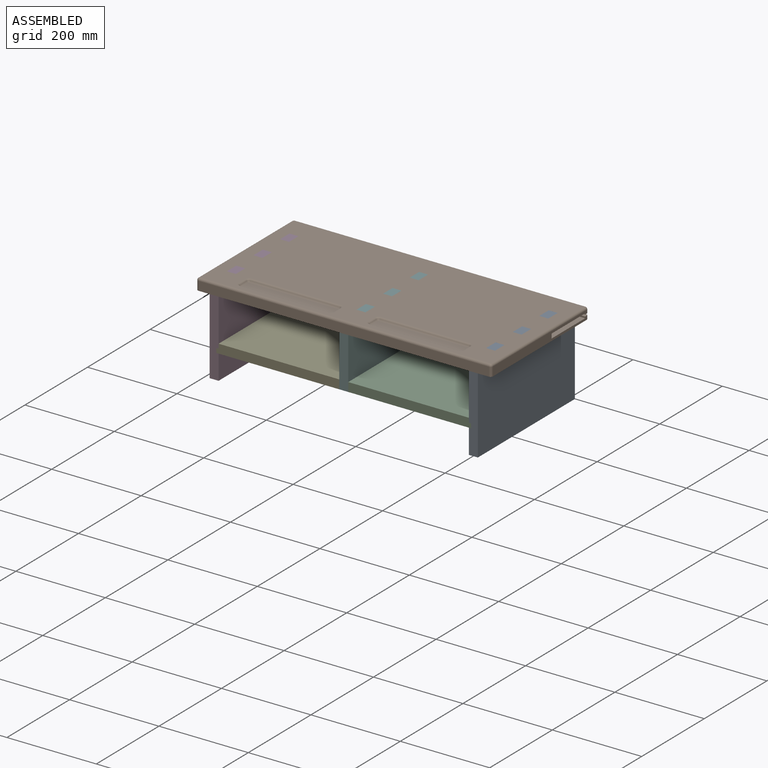
[diagram: assembled view]
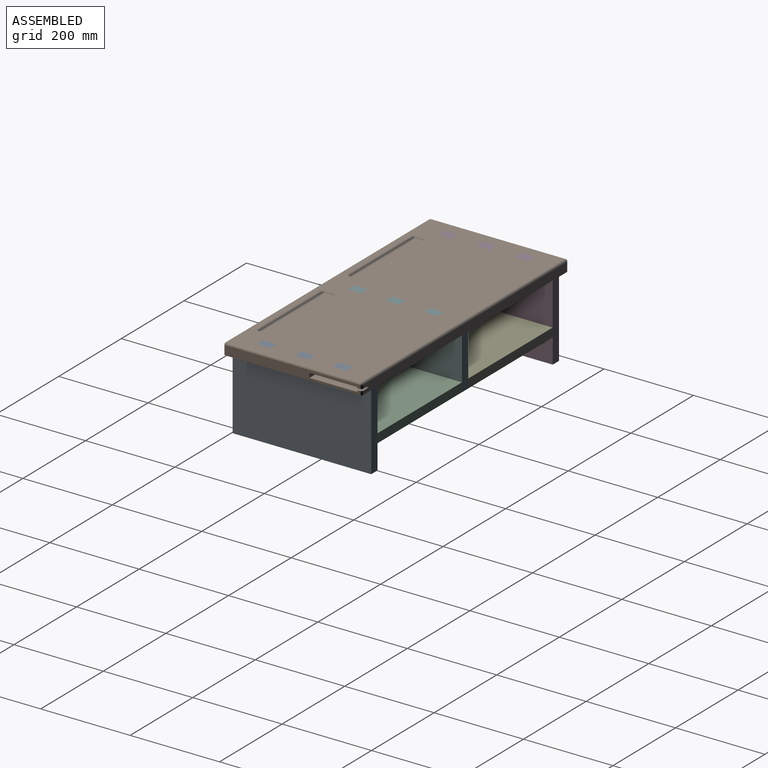
[diagram: assembled view, second angle]
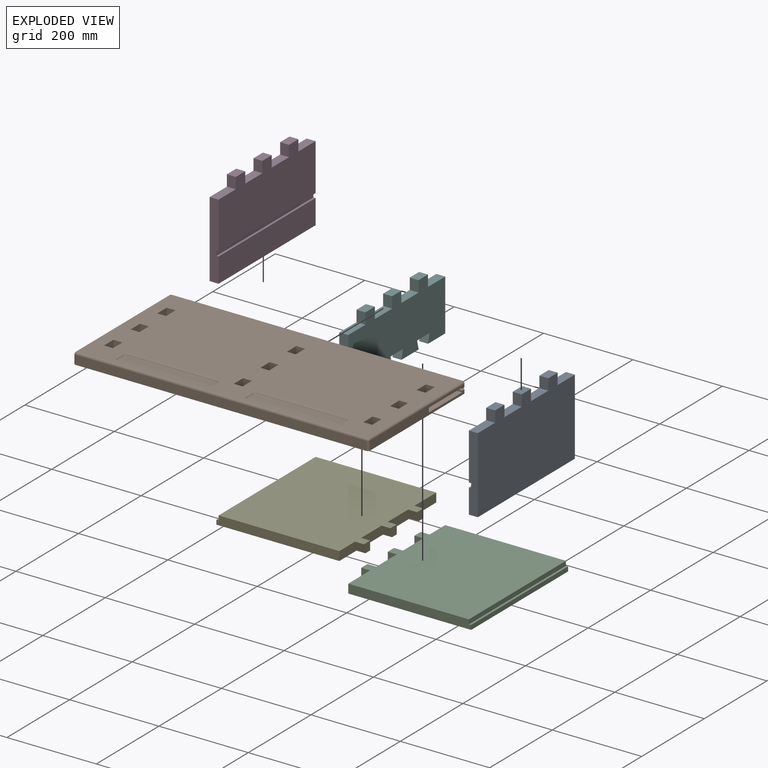
[diagram: exploded view]
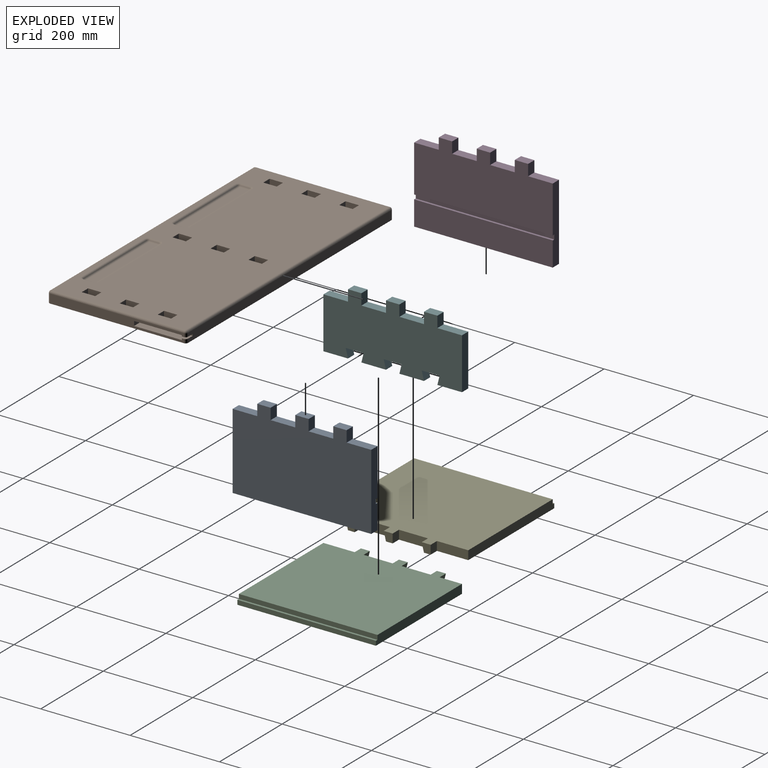
[diagram: exploded view, second angle]
ASSEMBLY  parts=6 mates=5
PART A: 22 faces, bbox 20x310x195 mm
  f0: plane 310x130mm, normal (1,0,0), area 34800mm2, adj f1,f2,f3,f4,f6,f7,f8,f9
  f1: plane 170x20mm, normal (0,1,0), area 3350mm2, adj f0,f5,f6,f17,f18,f19,f20,f21
  f2: plane 25x20mm, normal (0,-1,0), area 500mm2, adj f0,f3,f16,f18
  f3: plane 55x20mm, normal (0,0,1), area 1100mm2, adj f0,f2,f4,f18
  f4: plane 170x20mm, normal (0,-1,0), area 3350mm2, adj f0,f3,f5,f17,f18,f19,f20,f21
  f5: plane 310x20mm, normal (0,0,-1), area 6200mm2, adj f1,f4,f17,f18
  f6: plane 55x20mm, normal (0,0,1), area 1100mm2, adj f0,f1,f7,f18
  f7: plane 25x20mm, normal (0,1,0), area 500mm2, adj f0,f6,f8,f18
  f8: plane 30x20mm, normal (0,0,1), area 600mm2, adj f0,f7,f9,f18
  f9: plane 25x20mm, normal (0,-1,0), area 500mm2, adj f0,f8,f10,f18
  f10: plane 55x20mm, normal (0,0,1), area 1100mm2, adj f0,f9,f11,f18
  f11: plane 25x20mm, normal (0,1,0), area 500mm2, adj f0,f10,f12,f18
  f12: plane 30x20mm, normal (0,0,1), area 600mm2, adj f0,f11,f13,f18
  f13: plane 25x20mm, normal (0,-1,0), area 500mm2, adj f0,f12,f14,f18
  f14: plane 55x20mm, normal (0,0,1), area 1100mm2, adj f0,f13,f15,f18
  f15: plane 25x20mm, normal (0,1,0), area 500mm2, adj f0,f14,f16,f18
  f16: plane 30x20mm, normal (0,0,1), area 600mm2, adj f0,f2,f15,f18
  f17: plane 310x55mm, normal (1,0,0), area 17050mm2, adj f1,f4,f5,f20
  f18: plane 310x195mm, normal (-1,0,0), area 54950mm2, adj f1,f2,f3,f4,f5,f6,f7,f8
  f19: plane 310x5mm, normal (0,0,-1), area 1550mm2, adj f0,f1,f4,f21
  f20: plane 310x5mm, normal (0,0,1), area 1550mm2, adj f1,f4,f17,f21
  f21: plane 310x10mm, normal (1,0,0), area 3100mm2, adj f1,f4,f19,f20
PART B: 99 faces, bbox 660x310x25 mm
  f0: plane 650x20mm, normal (0,1,0), area 12940mm2, adj f28,f79,f87,f88,f89,f92,f96,f98
  f1: plane 30x10mm, normal (0,-1,0), area 220mm2, adj f3,f82,f83,f85,f87,f88,f89
  f2: plane 30x10mm, normal (-1,0,0), area 300mm2, adj f4,f30,f43,f83
  f3: plane 300x20mm, normal (1,0,0), area 4910mm2, adj f1,f28,f81,f83,f84,f85,f87,f88
  f4: plane 650x300mm, normal (0,0,1), area 172925.4mm2, adj f2,f5,f6,f7,f8,f9,f10,f11
  f5: plane 30x25mm, normal (1,0,0), area 750mm2, adj f4,f6,f27,f28
  f6: plane 25x20mm, normal (0,-1,0), area 500mm2, adj f4,f5,f7,f28
  f7: plane 30x25mm, normal (-1,0,0), area 750mm2, adj f4,f6,f27,f28
  f8: plane 30x25mm, normal (1,0,0), area 750mm2, adj f4,f9,f24,f28
  f9: plane 25x20mm, normal (0,-1,0), area 500mm2, adj f4,f8,f10,f28
  f10: plane 30x25mm, normal (-1,0,0), area 750mm2, adj f4,f9,f24,f28
  f11: plane 30x25mm, normal (1,0,0), area 750mm2, adj f4,f12,f25,f28
  f12: plane 25x20mm, normal (0,-1,0), area 500mm2, adj f4,f11,f13,f28
  f13: plane 30x25mm, normal (-1,0,0), area 750mm2, adj f4,f12,f25,f28
  f14: plane 25x20mm, normal (0,1,0), area 500mm2, adj f4,f15,f28,f38
  f15: plane 30x25mm, normal (1,0,0), area 750mm2, adj f4,f14,f16,f28
  f16: plane 25x20mm, normal (0,-1,0), area 500mm2, adj f4,f15,f28,f38
  f17: plane 300x20mm, normal (-1,0,0), area 6000mm2, adj f28,f78,f92,f94
  f18: plane 650x20mm, normal (0,-1,0), area 13000mm2, adj f28,f80,f90,f94
  f19: plane 25x20mm, normal (0,1,0), area 500mm2, adj f4,f20,f28,f39
  f20: plane 30x25mm, normal (1,0,0), area 750mm2, adj f4,f19,f21,f28
  f21: plane 25x20mm, normal (0,-1,0), area 500mm2, adj f4,f20,f28,f39
  f22: plane 25x20mm, normal (0,1,0), area 500mm2, adj f4,f23,f28,f40
  f23: plane 30x25mm, normal (1,0,0), area 750mm2, adj f4,f22,f26,f28
  f24: plane 25x20mm, normal (0,1,0), area 500mm2, adj f4,f8,f10,f28
  f25: plane 25x20mm, normal (0,1,0), area 500mm2, adj f4,f11,f13,f28
  f26: plane 25x20mm, normal (0,-1,0), area 500mm2, adj f4,f23,f28,f40
  f27: plane 25x20mm, normal (0,1,0), area 500mm2, adj f4,f5,f7,f28
  f28: plane 660x310mm, normal (0,0,-1), area 199178.5mm2, adj f0,f3,f5,f6,f7,f8,f9,f10
  f29: plane 30x5mm, normal (-1,0,0), area 150mm2, adj f28,f30,f43,f85
  f30: plane 25x20mm, normal (0,-1,0), area 500mm2, adj f2,f4,f28,f29,f31,f82
  f31: plane 30x25mm, normal (1,0,0), area 750mm2, adj f4,f28,f30,f43
  f32: plane 30x25mm, normal (-1,0,0), area 750mm2, adj f4,f28,f33,f41
  f33: plane 25x20mm, normal (0,-1,0), area 500mm2, adj f4,f28,f32,f34
  f34: plane 30x25mm, normal (1,0,0), area 750mm2, adj f4,f28,f33,f41
  f35: plane 30x25mm, normal (-1,0,0), area 750mm2, adj f4,f28,f36,f42
  f36: plane 25x20mm, normal (0,-1,0), area 500mm2, adj f4,f28,f35,f37
  f37: plane 30x25mm, normal (1,0,0), area 750mm2, adj f4,f28,f36,f42
  f38: plane 30x25mm, normal (-1,0,0), area 750mm2, adj f4,f14,f16,f28
  f39: plane 30x25mm, normal (-1,0,0), area 750mm2, adj f4,f19,f21,f28
  f40: plane 30x25mm, normal (-1,0,0), area 750mm2, adj f4,f22,f26,f28
  f41: plane 25x20mm, normal (0,1,0), area 500mm2, adj f4,f28,f32,f34
  f42: plane 25x20mm, normal (0,1,0), area 500mm2, adj f4,f28,f35,f37
  f43: plane 25x20mm, normal (0,1,0), area 500mm2, adj f2,f4,f28,f29,f31,f86
  f44: plane 200x21.34mm, normal (0,0,1), area 4267.9mm2, adj f63,f64,f68,f73
  f45: plane 200x21.34mm, normal (0,0,1), area 4267.9mm2, adj f47,f48,f52,f57
  f46: cylinder r=5mm len=200mm, axis (1,0,0), area 1047.2mm2, adj f4,f47,f51,f55
  f47: cylinder r=5mm len=200mm, axis (1,0,0), area 1047.2mm2, adj f45,f46,f49,f53
  f48: cylinder r=5mm len=21.34mm, axis (0,1,0), area 111.7mm2, adj f45,f49,f50,f56
  f49: sphere r=5mm, area 19.6mm2, adj f47,f48,f51
  f50: cylinder r=5mm len=21.34mm, axis (0,1,0), area 111.7mm2, adj f4,f48,f51,f59
  f51: torus R=8.66mm, axis (0,0,1), area 51.6mm2, adj f4,f46,f49,f50
  f52: cylinder r=5mm len=21.34mm, axis (0,-1,0), area 111.7mm2, adj f45,f53,f54,f58
  f53: sphere r=5mm, area 19.6mm2, adj f47,f52,f55
  f54: cylinder r=5mm len=21.34mm, axis (0,-1,0), area 111.7mm2, adj f4,f52,f55,f61
  f55: torus R=8.66mm, axis (0,0,1), area 51.6mm2, adj f4,f46,f53,f54
  f56: sphere r=5mm, area 19.6mm2, adj f48,f57,f59
  f57: cylinder r=5mm len=200mm, axis (1,0,0), area 1047.2mm2, adj f45,f56,f58,f60
  f58: sphere r=5mm, area 19.6mm2, adj f52,f57,f61
  f59: torus R=8.66mm, axis (0,0,1), area 51.6mm2, adj f4,f50,f56,f60
  f60: cylinder r=5mm len=200mm, axis (1,0,0), area 1047.2mm2, adj f4,f57,f59,f61
  f61: torus R=8.66mm, axis (0,0,1), area 51.6mm2, adj f4,f54,f58,f60
  f62: cylinder r=5mm len=200mm, axis (1,0,0), area 1047.2mm2, adj f4,f63,f67,f71
  f63: cylinder r=5mm len=200mm, axis (1,0,0), area 1047.2mm2, adj f44,f62,f65,f69
  f64: cylinder r=5mm len=21.34mm, axis (0,-1,0), area 111.7mm2, adj f44,f65,f66,f74
  f65: sphere r=5mm, area 19.6mm2, adj f63,f64,f67
  f66: cylinder r=5mm len=21.34mm, axis (0,-1,0), area 111.7mm2, adj f4,f64,f67,f77
  f67: torus R=8.66mm, axis (0,0,1), area 51.6mm2, adj f4,f62,f65,f66
  f68: cylinder r=5mm len=21.34mm, axis (0,1,0), area 111.7mm2, adj f44,f69,f70,f72
  f69: sphere r=5mm, area 19.6mm2, adj f63,f68,f71
  f70: cylinder r=5mm len=21.34mm, axis (0,1,0), area 111.7mm2, adj f4,f68,f71,f75
  f71: torus R=8.66mm, axis (0,0,1), area 51.6mm2, adj f4,f62,f69,f70
  f72: sphere r=5mm, area 19.6mm2, adj f68,f73,f75
  f73: cylinder r=5mm len=200mm, axis (1,0,0), area 1047.2mm2, adj f44,f72,f74,f76
  f74: sphere r=5mm, area 19.6mm2, adj f64,f73,f77
  f75: torus R=8.66mm, axis (0,0,1), area 51.6mm2, adj f4,f70,f72,f76
  f76: cylinder r=5mm len=200mm, axis (1,0,0), area 1047.2mm2, adj f4,f73,f75,f77
  f77: torus R=8.66mm, axis (0,0,1), area 51.6mm2, adj f4,f66,f74,f76
  f78: cylinder r=5mm len=300mm, axis (0,1,0), area 2356.2mm2, adj f4,f17,f93,f95
  f79: cylinder r=5mm len=650mm, axis (1,0,0), area 5105.1mm2, adj f0,f4,f93,f97
  f80: cylinder r=5mm len=650mm, axis (-1,0,0), area 5105.1mm2, adj f4,f18,f91,f95
  f81: cylinder r=5mm len=300mm, axis (0,1,0), area 2356.2mm2, adj f3,f4,f91,f97
  f82: plane 45x10mm, normal (1,0,0), area 450mm2, adj f1,f30,f83,f85
  f83: plane 107x30mm, normal (0,0,-1), area 3210mm2, adj f1,f2,f3,f82,f84,f86
  f84: plane 30x10mm, normal (0,1,0), area 300mm2, adj f3,f83,f85,f86
  f85: plane 107x30mm, normal (0,0,1), area 3210mm2, adj f1,f3,f29,f82,f84,f86
  f86: plane 32x10mm, normal (1,0,0), area 320mm2, adj f43,f83,f84,f85
  f87: plane 20x10mm, normal (0,0,-1), area 194.6mm2, adj f0,f1,f3,f89,f96
  f88: plane 20x10mm, normal (0,0,1), area 194.6mm2, adj f0,f1,f3,f89,f98
  f89: plane 10x4mm, normal (1,0,0), area 40mm2, adj f0,f1,f87,f88
  f90: cylinder r=5mm len=20mm, axis (0,0,-1), area 157.1mm2, adj f3,f18,f28,f91
  f91: sphere r=5mm, area 39.3mm2, adj f80,f81,f90
  f92: cylinder r=5mm len=20mm, axis (0,0,1), area 157.1mm2, adj f0,f17,f28,f93
  f93: sphere r=5mm, area 39.3mm2, adj f78,f79,f92
  f94: cylinder r=5mm len=20mm, axis (0,0,-1), area 157.1mm2, adj f17,f18,f28,f95
  f95: sphere r=5mm, area 39.3mm2, adj f78,f80,f94
  f96: cylinder r=5mm len=7.5mm, axis (0,0,1), area 58.9mm2, adj f0,f3,f87,f97
  f97: sphere r=5mm, area 39.3mm2, adj f79,f81,f96
  f98: cylinder r=5mm len=8.5mm, axis (0,0,1), area 66.8mm2, adj f0,f3,f28,f88
PART C: 20 faces, bbox 310x295x20 mm
  f0: plane 310x10mm, normal (0,1,0), area 3100mm2, adj f12,f13,f14,f18
  f1: plane 310x295mm, normal (0,0,-1), area 86150mm2, adj f2,f3,f4,f5,f6,f7,f8,f9
  f2: plane 55x20mm, normal (0,-1,0), area 1050mm2, adj f1,f13,f14,f17
  f3: plane 20x20mm, normal (0,-1,0), area 350mm2, adj f1,f4,f14,f17
  f4: plane 20x20mm, normal (1,0,0), area 400mm2, adj f1,f3,f5,f14
  f5: plane 70x20mm, normal (0,-1,0), area 1350mm2, adj f1,f4,f14,f16
  f6: plane 20x20mm, normal (0,-1,0), area 350mm2, adj f1,f7,f14,f16
  f7: plane 20x20mm, normal (1,0,0), area 400mm2, adj f1,f6,f8,f14
  f8: plane 70x20mm, normal (0,-1,0), area 1350mm2, adj f1,f7,f14,f15
  f9: plane 20x20mm, normal (0,-1,0), area 350mm2, adj f1,f10,f14,f15
  f10: plane 20x20mm, normal (1,0,0), area 400mm2, adj f1,f9,f11,f14
  f11: plane 70x20mm, normal (0,-1,0), area 1400mm2, adj f1,f10,f12,f14
  f12: plane 275x20mm, normal (1,0,0), area 5450mm2, adj f0,f1,f11,f14,f18,f19
  f13: plane 275x20mm, normal (-1,0,0), area 5450mm2, adj f0,f1,f2,f14,f18,f19
  f14: plane 310x290mm, normal (0,0,1), area 84900mm2, adj f0,f2,f3,f4,f5,f6,f7,f8
  f15: plane 20x20mm, normal (-0.97,0,-0.24), area 412.3mm2, adj f1,f8,f9,f14
  f16: plane 20x20mm, normal (-0.97,0,-0.24), area 412.3mm2, adj f1,f5,f6,f14
  f17: plane 20x20mm, normal (-0.97,0,-0.24), area 412.3mm2, adj f1,f2,f3,f14
  f18: plane 310x5mm, normal (0,0,1), area 1550mm2, adj f0,f12,f13,f19
  f19: plane 310x10mm, normal (0,1,0), area 3100mm2, adj f1,f12,f13,f18
PART D: same geometry as A
PART E: same geometry as C
PART F: 30 faces, bbox 20x310x140 mm
  f0: plane 40x20mm, normal (0,0,-1), area 800mm2, adj f1,f27,f28,f29
  f1: plane 20x20mm, normal (0,-0.97,0.24), area 412.3mm2, adj f0,f2,f28,f29
  f2: plane 55x20mm, normal (0,0,-1), area 1100mm2, adj f1,f3,f28,f29
  f3: plane 115x20mm, normal (0,1,0), area 2300mm2, adj f2,f4,f28,f29
  f4: plane 55x20mm, normal (0,0,1), area 1100mm2, adj f3,f5,f28,f29
  f5: plane 25x20mm, normal (0,1,0), area 500mm2, adj f4,f6,f28,f29
  f6: plane 30x20mm, normal (0,0,1), area 600mm2, adj f5,f7,f28,f29
  f7: plane 25x20mm, normal (0,-1,0), area 500mm2, adj f6,f8,f28,f29
  f8: plane 55x20mm, normal (0,0,1), area 1100mm2, adj f7,f9,f28,f29
  f9: plane 25x20mm, normal (0,1,0), area 500mm2, adj f8,f10,f28,f29
  f10: plane 30x20mm, normal (0,0,1), area 600mm2, adj f9,f11,f28,f29
  f11: plane 25x20mm, normal (0,-1,0), area 500mm2, adj f10,f12,f28,f29
  f12: plane 55x20mm, normal (0,0,1), area 1100mm2, adj f11,f13,f28,f29
  f13: plane 25x20mm, normal (0,1,0), area 500mm2, adj f12,f14,f28,f29
  f14: plane 30x20mm, normal (0,0,1), area 600mm2, adj f13,f15,f28,f29
  f15: plane 25x20mm, normal (0,-1,0), area 500mm2, adj f14,f16,f28,f29
  f16: plane 55x20mm, normal (0,0,1), area 1100mm2, adj f15,f17,f28,f29
  f17: plane 115x20mm, normal (0,-1,0), area 2300mm2, adj f16,f18,f28,f29
  f18: plane 55x20mm, normal (0,0,-1), area 1100mm2, adj f17,f19,f28,f29
  f19: plane 20x20mm, normal (0,0.97,0.24), area 412.3mm2, adj f18,f20,f28,f29
  f20: plane 40x20mm, normal (0,0,-1), area 800mm2, adj f19,f21,f28,f29
  f21: plane 20x20mm, normal (0,-0.97,0.24), area 412.3mm2, adj f20,f22,f28,f29
  f22: plane 55x20mm, normal (0,0,-1), area 1100mm2, adj f21,f23,f28,f29
  f23: plane 20x20mm, normal (0,0.97,0.24), area 412.3mm2, adj f22,f24,f28,f29
  f24: plane 40x20mm, normal (0,0,-1), area 800mm2, adj f23,f25,f28,f29
  f25: plane 20x20mm, normal (0,-0.97,0.24), area 412.3mm2, adj f24,f26,f28,f29
  f26: plane 55x20mm, normal (0,0,-1), area 1100mm2, adj f25,f27,f28,f29
  f27: plane 20x20mm, normal (0,0.97,0.24), area 412.3mm2, adj f0,f26,f28,f29
  f28: plane 310x140mm, normal (1,0,0), area 35800mm2, adj f0,f1,f2,f3,f4,f5,f6,f7
  f29: plane 310x140mm, normal (-1,0,0), area 35800mm2, adj f0,f1,f2,f3,f4,f5,f6,f7
PLACE A rot(axis=(0,0,1),180deg) t=(458.34,-31.74,-27.29)mm
PLACE B t=(4.96,0.43,-11.24)mm fixed
PLACE C rot(axis=(0,0,-1),90deg) t=(311.18,-36.88,-126.24)mm
PLACE D t=(-141.66,42.09,-27.29)mm
PLACE E rot(axis=(0,0,1),90deg) t=(5.5,47.23,-126.24)mm
PLACE F t=(148.34,-32.36,-65.87)mm
MATE fastened C.f1 <-> F.f2  axis (0,0,-1) through (168.34,105.17,-126.24)mm
MATE fastened F.f6 <-> B.f4  axis (0,0,1) through (148.34,90.17,13.76)mm
MATE fastened C.f4 <-> E.f10  axis (0,-1,0) through (158.34,90.17,-116.24)mm
MATE fastened A.f16 <-> B.f4  axis (0,0,1) through (438.34,90.17,13.76)mm
MATE fastened D.f16 <-> B.f4  axis (0,0,1) through (-121.66,-79.83,13.76)mm
